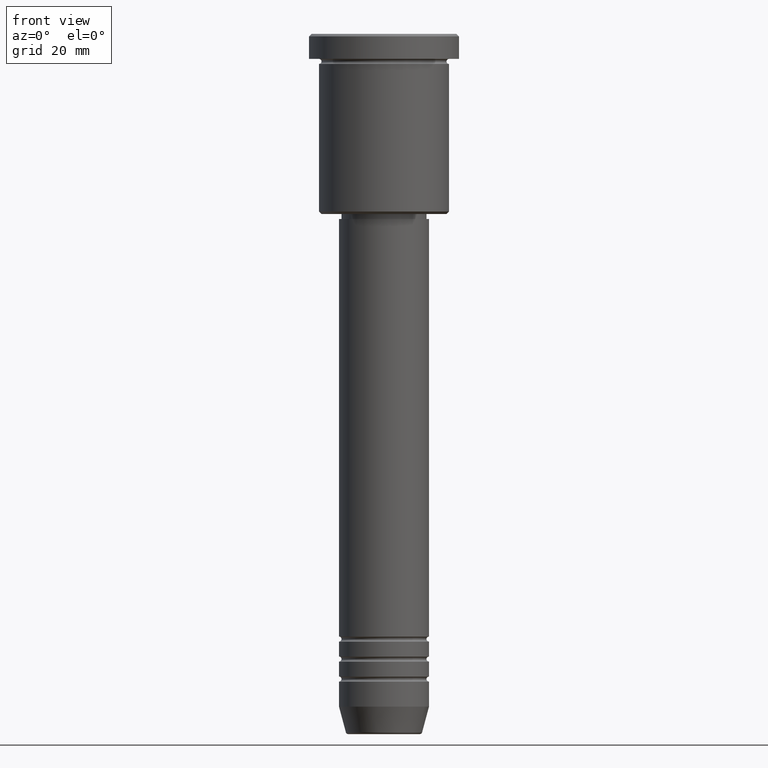
[diagram: clean part render]
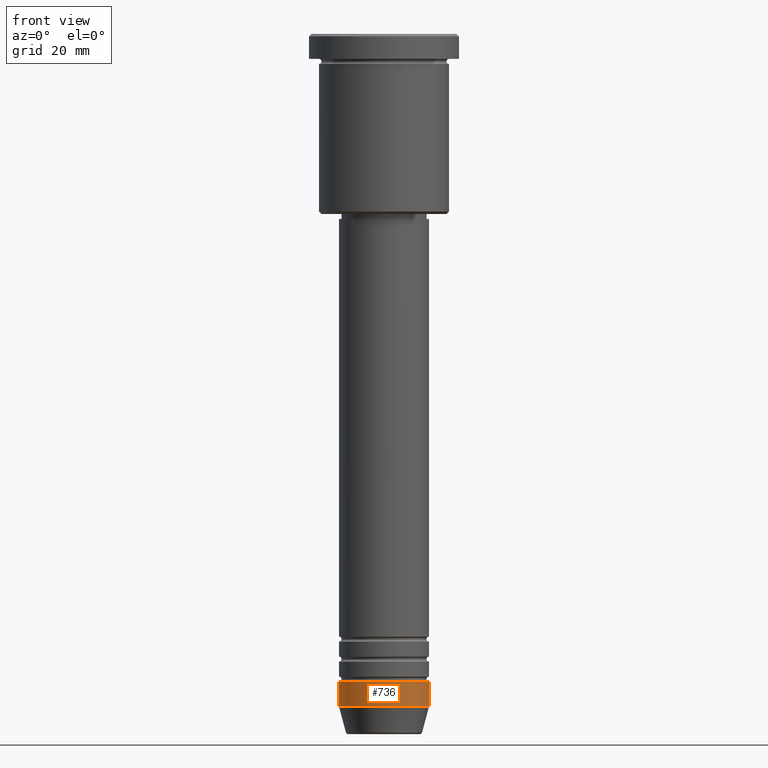
[diagram: same view with one face highlighted and labeled with its STEP entity id]
A machine part, front view. The second image highlights one B-rep face of the part: STEP entity #736.
In plain terms, the highlighted cylindrical surface (partial cylindrical patch) has radius 9 mm, axis along (-0, -0, 1).
Its self-contained STEP definition (entity closure, byte-faithful):
#11 = VECTOR ( 'NONE', #24, 1000.000000000000000 ) ;
#18 = CARTESIAN_POINT ( 'NONE',  ( 9.000000000000001776, 0.000000000000000000, -134.5000000000000000 ) ) ;
#19 = EDGE_CURVE ( 'NONE', #129, #1148, #62, .T. ) ;
#24 = DIRECTION ( 'NONE',  ( -0.000000000000000000, -0.000000000000000000, 1.000000000000000000 ) ) ;
#43 = CARTESIAN_POINT ( 'NONE',  ( 9.000000000000000000, 0.000000000000000000, -129.5000000000000000 ) ) ;
#62 = CIRCLE ( 'NONE', #339, 9.000000000000000000 ) ;
#73 = CYLINDRICAL_SURFACE ( 'NONE', #326, 9.000000000000001776 ) ;
#99 = CARTESIAN_POINT ( 'NONE',  ( -9.000000000000001776, 1.102182119232617911E-15, 0.000000000000000000 ) ) ;
#129 = VERTEX_POINT ( 'NONE', #208 ) ;
#135 = ORIENTED_EDGE ( 'NONE', *, *, #487, .F. ) ;
#145 = ORIENTED_EDGE ( 'NONE', *, *, #19, .F. ) ;
#185 = DIRECTION ( 'NONE',  ( -0.000000000000000000, -0.000000000000000000, 1.000000000000000000 ) ) ;
#190 = DIRECTION ( 'NONE',  ( -0.000000000000000000, -0.000000000000000000, 1.000000000000000000 ) ) ;
#208 = CARTESIAN_POINT ( 'NONE',  ( -9.000000000000000000, 1.102182119232617714E-15, -129.5000000000000000 ) ) ;
#318 = ORIENTED_EDGE ( 'NONE', *, *, #444, .T. ) ;
#326 = AXIS2_PLACEMENT_3D ( 'NONE', #792, #610, #702 ) ;
#339 = AXIS2_PLACEMENT_3D ( 'NONE', #981, #727, #722 ) ;
#375 = DIRECTION ( 'NONE',  ( 1.000000000000000000, 0.000000000000000000, 0.000000000000000000 ) ) ;
#429 = FACE_OUTER_BOUND ( 'NONE', #1056, .T. ) ;
#444 = EDGE_CURVE ( 'NONE', #706, #523, #728, .T. ) ;
#487 = EDGE_CURVE ( 'NONE', #706, #129, #1025, .T. ) ;
#523 = VERTEX_POINT ( 'NONE', #18 ) ;
#531 = AXIS2_PLACEMENT_3D ( 'NONE', #740, #190, #375 ) ;
#544 = EDGE_CURVE ( 'NONE', #523, #1148, #1097, .T. ) ;
#610 = DIRECTION ( 'NONE',  ( -0.000000000000000000, -0.000000000000000000, 1.000000000000000000 ) ) ;
#618 = ORIENTED_EDGE ( 'NONE', *, *, #544, .T. ) ;
#702 = DIRECTION ( 'NONE',  ( 1.000000000000000000, 0.000000000000000000, 0.000000000000000000 ) ) ;
#706 = VERTEX_POINT ( 'NONE', #707 ) ;
#707 = CARTESIAN_POINT ( 'NONE',  ( -9.000000000000001776, 1.102182119232617911E-15, -134.5000000000000000 ) ) ;
#722 = DIRECTION ( 'NONE',  ( 1.000000000000000000, 0.000000000000000000, 0.000000000000000000 ) ) ;
#727 = DIRECTION ( 'NONE',  ( -0.000000000000000000, -0.000000000000000000, 1.000000000000000000 ) ) ;
#728 = CIRCLE ( 'NONE', #531, 9.000000000000001776 ) ;
#736 = ADVANCED_FACE ( 'NONE', ( #429 ), #73, .T. ) ;
#740 = CARTESIAN_POINT ( 'NONE',  ( 0.000000000000000000, 0.000000000000000000, -134.5000000000000000 ) ) ;
#792 = CARTESIAN_POINT ( 'NONE',  ( 0.000000000000000000, 0.000000000000000000, 0.000000000000000000 ) ) ;
#808 = VECTOR ( 'NONE', #185, 1000.000000000000000 ) ;
#826 = CARTESIAN_POINT ( 'NONE',  ( 9.000000000000001776, 0.000000000000000000, 0.000000000000000000 ) ) ;
#981 = CARTESIAN_POINT ( 'NONE',  ( 0.000000000000000000, 0.000000000000000000, -129.5000000000000000 ) ) ;
#1025 = LINE ( 'NONE', #99, #808 ) ;
#1056 = EDGE_LOOP ( 'NONE', ( #135, #318, #618, #145 ) ) ;
#1097 = LINE ( 'NONE', #826, #11 ) ;
#1148 = VERTEX_POINT ( 'NONE', #43 ) ;